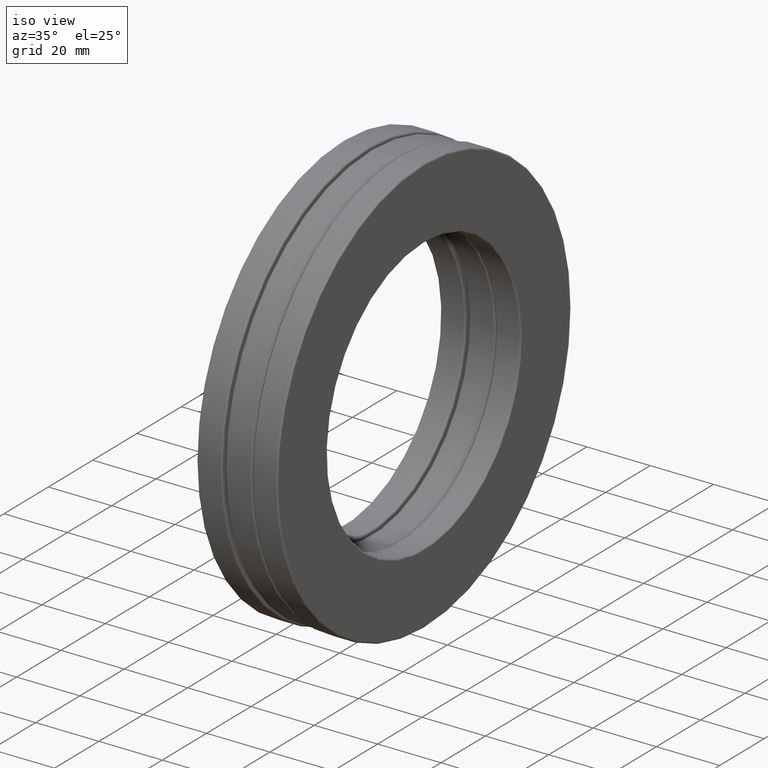
[diagram: clean part render]
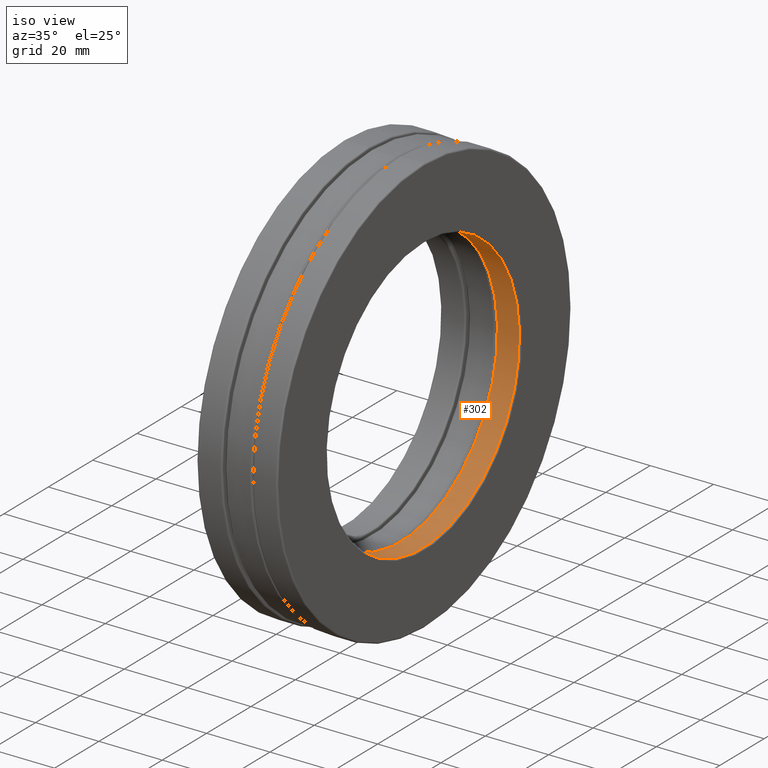
[diagram: same view with one face highlighted and labeled with its STEP entity id]
A machine part, iso view. The second image highlights one B-rep face of the part: STEP entity #302.
In plain terms, the highlighted cylindrical surface (bore or boss wall) has radius 43.6562 mm, axis along (-1, -0, -0).
Its self-contained STEP definition (entity closure, byte-faithful):
#7 = DIRECTION ( 'NONE',  ( 0.0000000000000000000, 0.0000000000000000000, 1.000000000000000000 ) ) ;
#28 = DIRECTION ( 'NONE',  ( -1.000000000000000000, -0.0000000000000000000, -0.0000000000000000000 ) ) ;
#54 = ORIENTED_EDGE ( 'NONE', *, *, #326, .F. ) ;
#125 = CARTESIAN_POINT ( 'NONE',  ( 0.4800000000000000900, 0.0000000000000000000, 0.0000000000000000000 ) ) ;
#226 = DIRECTION ( 'NONE',  ( 0.0000000000000000000, 0.0000000000000000000, 1.000000000000000000 ) ) ;
#238 = VERTEX_POINT ( 'NONE', #549 ) ;
#255 = CIRCLE ( 'NONE', #322, 1.718750000000000000 ) ;
#302 = ADVANCED_FACE ( 'NONE', ( #671, #389 ), #494, .F. ) ;
#322 = AXIS2_PLACEMENT_3D ( 'NONE', #555, #28, #226 ) ;
#326 = EDGE_CURVE ( 'NONE', #1113, #1113, #467, .T. ) ;
#389 = FACE_OUTER_BOUND ( 'NONE', #958, .T. ) ;
#453 = EDGE_LOOP ( 'NONE', ( #543 ) ) ;
#467 = CIRCLE ( 'NONE', #1176, 1.718750000000000000 ) ;
#494 = CYLINDRICAL_SURFACE ( 'NONE', #620, 1.718750000000000000 ) ;
#543 = ORIENTED_EDGE ( 'NONE', *, *, #564, .T. ) ;
#544 = CARTESIAN_POINT ( 'NONE',  ( 0.0000000000000000000, 0.0000000000000000000, 0.0000000000000000000 ) ) ;
#549 = CARTESIAN_POINT ( 'NONE',  ( 0.2075000000000000700, 0.0000000000000000000, 1.718750000000000000 ) ) ;
#555 = CARTESIAN_POINT ( 'NONE',  ( 0.2075000000000000700, 0.0000000000000000000, 0.0000000000000000000 ) ) ;
#564 = EDGE_CURVE ( 'NONE', #238, #238, #255, .T. ) ;
#578 = DIRECTION ( 'NONE',  ( -1.000000000000000000, -0.0000000000000000000, -0.0000000000000000000 ) ) ;
#620 = AXIS2_PLACEMENT_3D ( 'NONE', #544, #1454, #782 ) ;
#642 = CARTESIAN_POINT ( 'NONE',  ( 0.4800000000000000900, 0.0000000000000000000, 1.718750000000000000 ) ) ;
#671 = FACE_OUTER_BOUND ( 'NONE', #453, .T. ) ;
#782 = DIRECTION ( 'NONE',  ( 0.0000000000000000000, 0.0000000000000000000, 1.000000000000000000 ) ) ;
#958 = EDGE_LOOP ( 'NONE', ( #54 ) ) ;
#1113 = VERTEX_POINT ( 'NONE', #642 ) ;
#1176 = AXIS2_PLACEMENT_3D ( 'NONE', #125, #578, #7 ) ;
#1454 = DIRECTION ( 'NONE',  ( -1.000000000000000000, -0.0000000000000000000, -0.0000000000000000000 ) ) ;